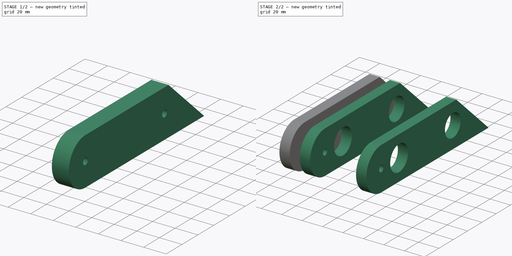
[diagram: build sequence overview — one tinted view per stage of 2, left to right]
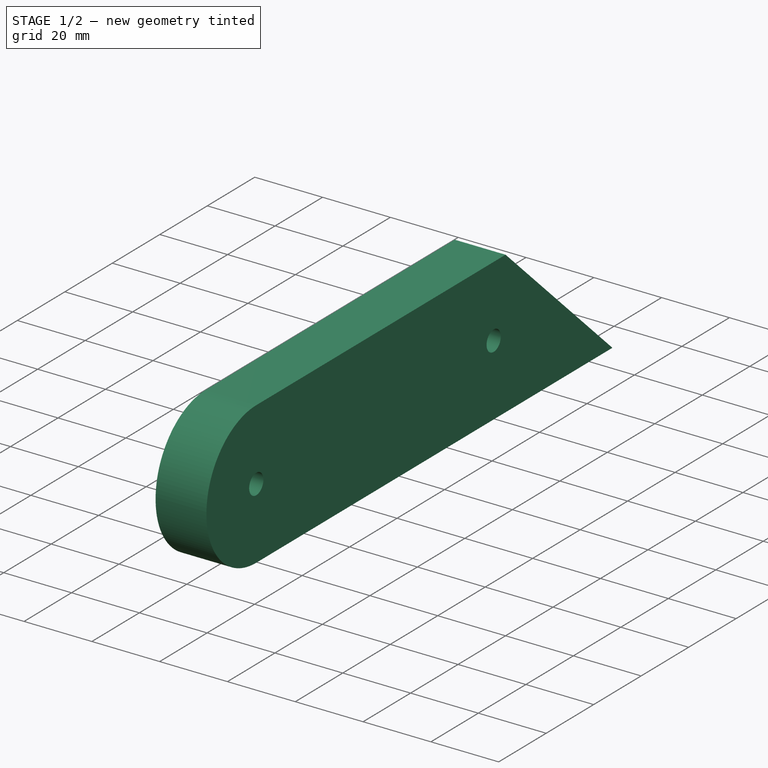
[diagram: stage 1 of 2 — iso view after this stage's code; geometry added in this stage tinted green]
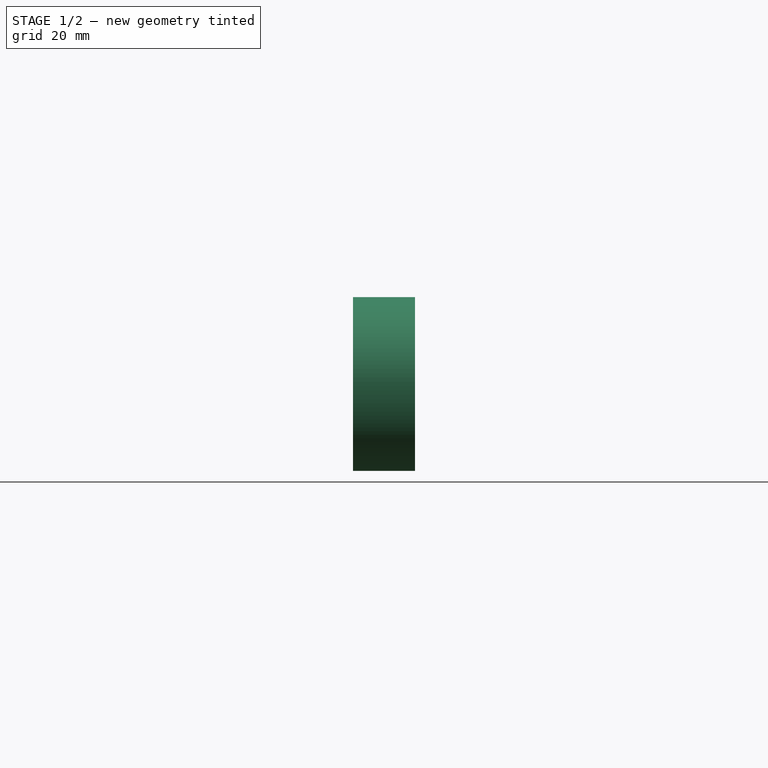
[diagram: stage 1 of 2 — front view after this stage's code; geometry added in this stage tinted green]
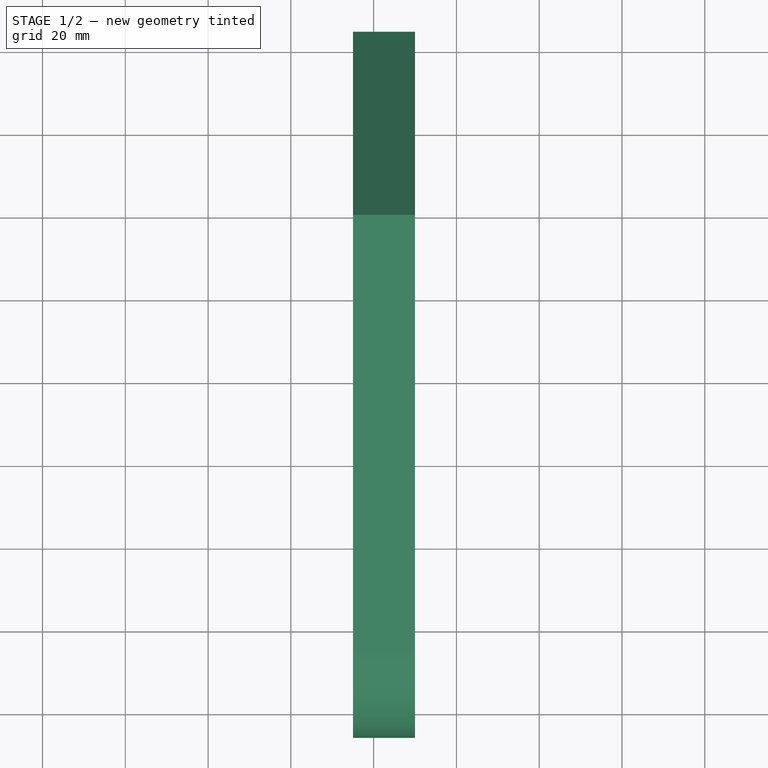
[diagram: stage 1 of 2 — top view after this stage's code; geometry added in this stage tinted green]
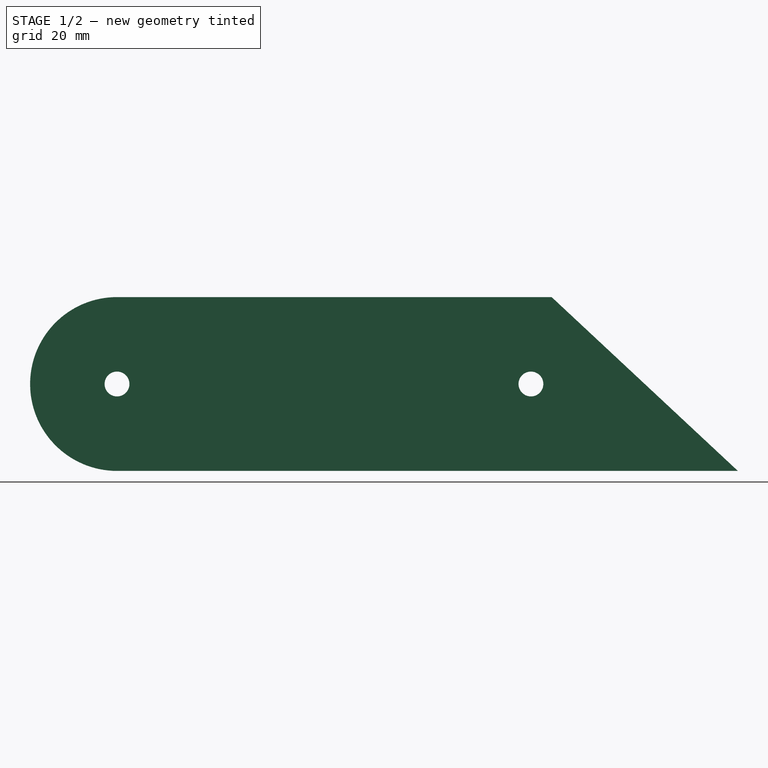
[diagram: stage 1 of 2 — right view after this stage's code; geometry added in this stage tinted green]
FCSTD DOCUMENT  (FreeCAD 0.18.4R)
Label: test1
License: All rights reserved
LicenseURL: http://en.wikipedia.org/wiki/All_rights_reserved
objects: PartDesign::Body×4, Sketcher::SketchObject×3, PartDesign::Pad×2, PartDesign::FeatureBase×2
note: 13 computed .brp shape members not serialized (recipe doc carries the construction recipe); baked Part::Feature solids carry a one-line shape summary decoded from their .brp

FEATURE [Sketcher::SketchObject] Sketch
  MapMode = 5
  Placement = pos=(0,0,0) rot=(0.57735,0.57735,0.57735;2.0944rad)
  Support = -> [YZ_Plane]
  sketch-geometry (7):
    g0: ArcOfCircle CenterX=-25 CenterY=21 CenterZ=0 NormalX=0 NormalY=0 NormalZ=1 AngleXU=0 Radius=21 StartAngle=1.5708 EndAngle=4.71239
    g1: Circle CenterX=0 CenterY=21 CenterZ=0 NormalX=0 NormalY=0 NormalZ=1 AngleXU=0 Radius=12.5
    g2: Circle CenterX=75 CenterY=21 CenterZ=0 NormalX=0 NormalY=0 NormalZ=1 AngleXU=0 Radius=11
    g3: LineSegment StartX=-25 StartY=42 StartZ=0 EndX=80 EndY=42 EndZ=0
    g4: LineSegment StartX=80 StartY=42 StartZ=0 EndX=125 EndY=0 EndZ=0
    g5: LineSegment StartX=125 StartY=0 StartZ=0 EndX=-25 EndY=0 EndZ=0
    g6: Circle CenterX=-25 CenterY=21 CenterZ=0 NormalX=0 NormalY=0 NormalZ=1 AngleXU=0 Radius=3
  constraints (20):
    c: PointOnObject(g0,g-1)
    c: Tangent(g0,g3) = 1.5708
    c: Coincident(g3,g4)
    c: Coincident(g4,g5)
    c: Coincident(g5,g0)
    c: Horizontal(g5)
    c: Horizontal(g3)
    c: Horizontal(g2,g1)
    c: DistanceY(g0,g0) = 42
    c: DistanceX(g0,g4) = 150
    c: Radius(g0) = 21
    c: Radius(g1) = 12.5
    c: Radius(g2) = 11
    c: DistanceX(g0,g1) = 25
    c: DistanceX(g0,g2) = 100
    c: Coincident(g6,g0)
    c: Radius(g6) = 3
    c: DistanceX(g3,g4) = 45
    c: PointOnObject(g1,g-2)
    c: DistanceY(g-1,g1) = 21
FEATURE [PartDesign::Pad] Pad
  Length = 10
  Length2 = 100
  Midplane = true
  Placement = pos=(0,0,0) rot=(0.57735,0.57735,0.57735;2.0944rad)
  Profile = -> Sketch
  Refine = true
  Type = 0
FEATURE [PartDesign::Body] Body002
  Group = -> [Clone001]
  Origin = -> Origin002
  Tip = -> Clone001
FEATURE [Sketcher::SketchObject] Sketch001
  MapMode = 5
  Placement = pos=(0,0,0) rot=(0.57735,0.57735,0.57735;2.0944rad)
  Support = -> [YZ_Plane]
  sketch-geometry (6):
    g0: ArcOfCircle CenterX=-25 CenterY=21 CenterZ=0 NormalX=0 NormalY=0 NormalZ=1 AngleXU=0 Radius=21 StartAngle=1.5708 EndAngle=4.71239
    g1: Circle CenterX=75 CenterY=21 CenterZ=0 NormalX=0 NormalY=0 NormalZ=1 AngleXU=0 Radius=3
    g2: LineSegment StartX=-25 StartY=42 StartZ=0 EndX=80 EndY=42 EndZ=0
    g3: LineSegment StartX=80 StartY=42 StartZ=0 EndX=125 EndY=0 EndZ=0
    g4: LineSegment StartX=125 StartY=0 StartZ=0 EndX=-25 EndY=0 EndZ=0
    g5: Circle CenterX=-25 CenterY=21 CenterZ=0 NormalX=0 NormalY=0 NormalZ=1 AngleXU=0 Radius=3
  constraints (15):
    c: PointOnObject(g0,g-1)
    c: Tangent(g0,g2) = 1.5708
    c: Coincident(g2,g3)
    c: Coincident(g3,g4)
    c: Coincident(g4,g0)
    c: Horizontal(g4)
    c: Horizontal(g2)
    c: DistanceY(g0,g0) = 42
    c: DistanceX(g0,g3) = 150
    c: Radius(g0) = 21
    c: Radius(g1) = 3
    c: DistanceX(g0,g1) = 100
    c: Coincident(g5,g0)
    c: Radius(g5) = 3
    c: DistanceX(g2,g3) = 45
FEATURE [Sketcher::SketchObject] CopySketch001
  Placement = pos=(0,0,0) rot=(0.57735,0.57735,0.57735;2.0944rad)
  sketch-geometry (6):
    g0: ArcOfCircle CenterX=-25 CenterY=21 CenterZ=0 NormalX=0 NormalY=0 NormalZ=1 AngleXU=0 Radius=21 StartAngle=1.5708 EndAngle=4.71239
    g1: Circle CenterX=75 CenterY=21 CenterZ=0 NormalX=0 NormalY=0 NormalZ=1 AngleXU=0 Radius=3
    g2: LineSegment StartX=-25 StartY=42 StartZ=0 EndX=80 EndY=42 EndZ=0
    g3: LineSegment StartX=80 StartY=42 StartZ=0 EndX=125 EndY=0 EndZ=0
    g4: LineSegment StartX=125 StartY=0 StartZ=0 EndX=-25 EndY=0 EndZ=0
    g5: Circle CenterX=-25 CenterY=21 CenterZ=0 NormalX=0 NormalY=0 NormalZ=1 AngleXU=0 Radius=3
  constraints (15):
    c: PointOnObject(g0,g-1)
    c: Tangent(g0,g2) = 1.5708
    c: Coincident(g2,g3)
    c: Coincident(g3,g4)
    c: Coincident(g4,g0)
    c: Horizontal(g4)
    c: Horizontal(g2)
    c: DistanceY(g0,g0) = 42
    c: DistanceX(g0,g3) = 150
    c: Radius(g0) = 21
    c: Radius(g1) = 3
    c: DistanceX(g0,g1) = 100
    c: Coincident(g5,g0)
    c: Radius(g5) = 3
    c: DistanceX(g2,g3) = 45
FEATURE [PartDesign::Pad] Pad001
  Length = 10
  Length2 = 100
  Placement = pos=(0,0,0) rot=(0.57735,0.57735,0.57735;2.0944rad)
  Profile = -> CopySketch001
  Refine = true
  Type = 0
FEATURE [PartDesign::Body] Body003  label="outerpanel"
  Group = -> [Pad001]
  Origin = -> Origin003
  Placement = pos=(115,0,0) rot=(0,0,1;0rad)
  Tip = -> Pad001
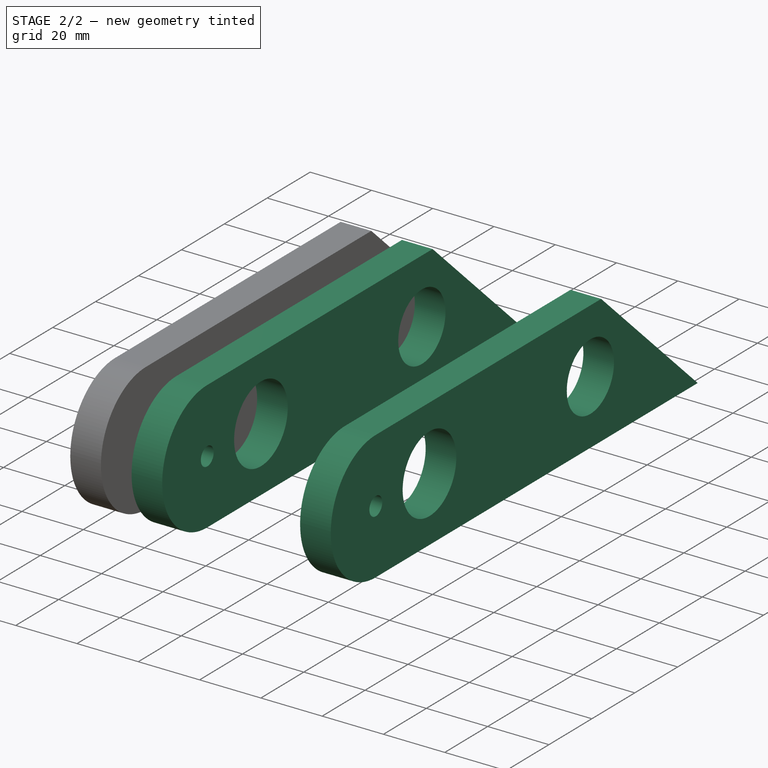
[diagram: stage 2 of 2 — iso view after this stage's code; geometry added in this stage tinted green]
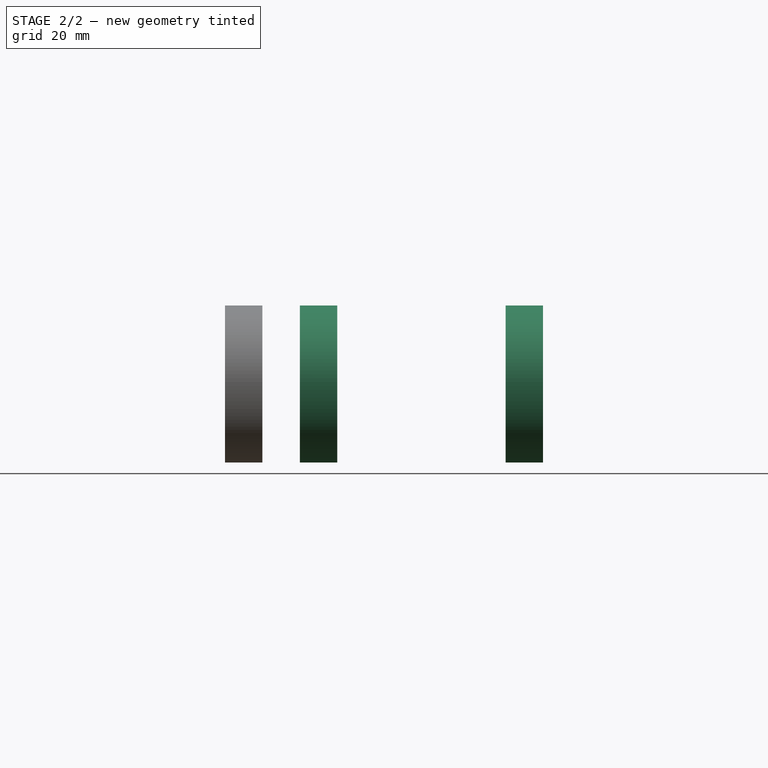
[diagram: stage 2 of 2 — front view after this stage's code; geometry added in this stage tinted green]
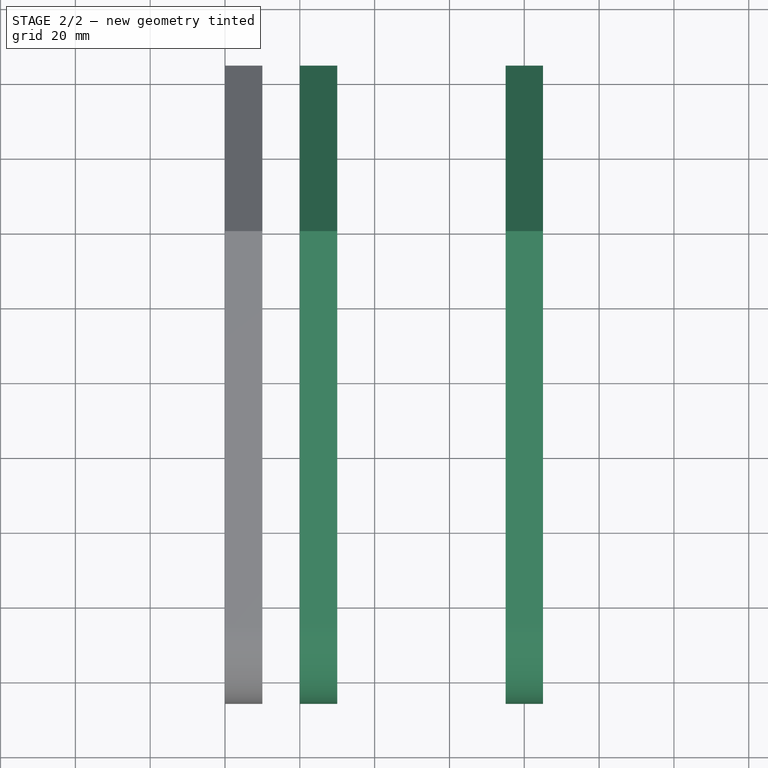
[diagram: stage 2 of 2 — top view after this stage's code; geometry added in this stage tinted green]
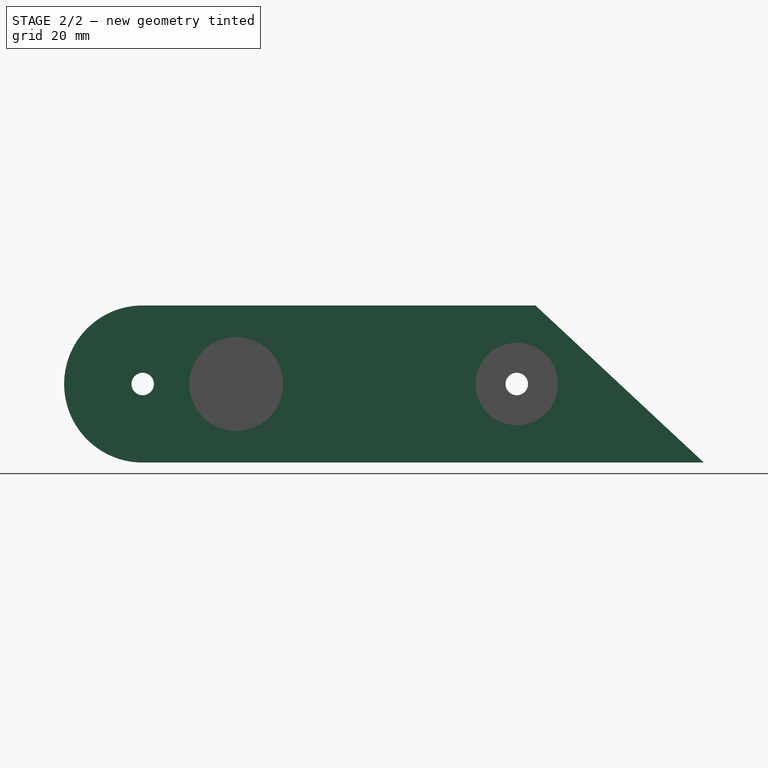
[diagram: stage 2 of 2 — right view after this stage's code; geometry added in this stage tinted green]
FEATURE [PartDesign::Body] Body
  Group = -> [Sketch,Pad]
  Origin = -> Origin
  Tip = -> Pad
FEATURE [PartDesign::FeatureBase] Clone
  BaseFeature = -> Body
  Placement = pos=(25,0,0) rot=(0,0,1;0rad)
FEATURE [PartDesign::Body] Body001
  Group = -> [Clone]
  Origin = -> Origin001
  Tip = -> Clone
FEATURE [PartDesign::FeatureBase] Clone001
  BaseFeature = -> Body
  Placement = pos=(80,0,0) rot=(0,0,1;0rad)
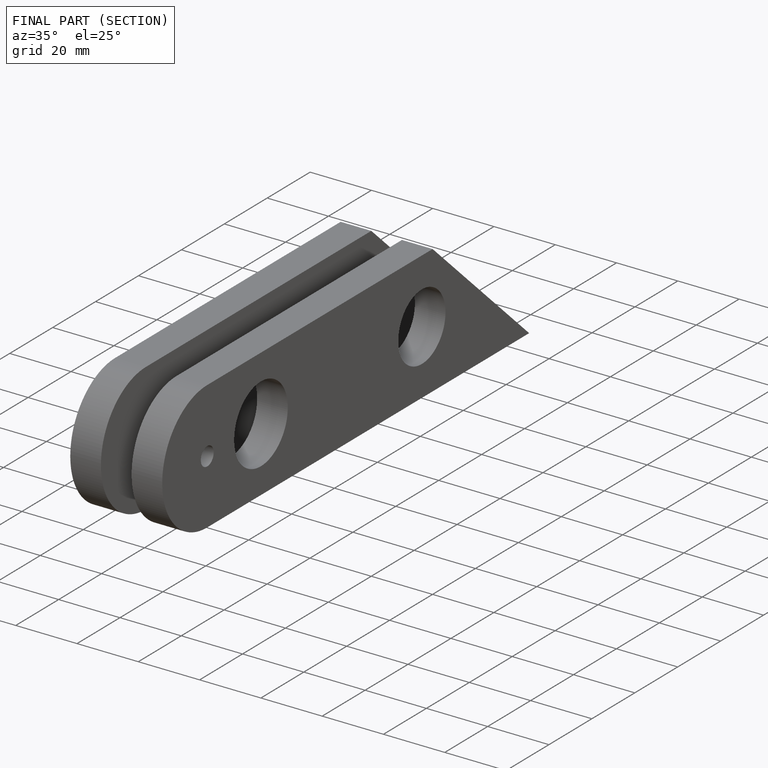
[diagram: finished part — half-section view (interior)]
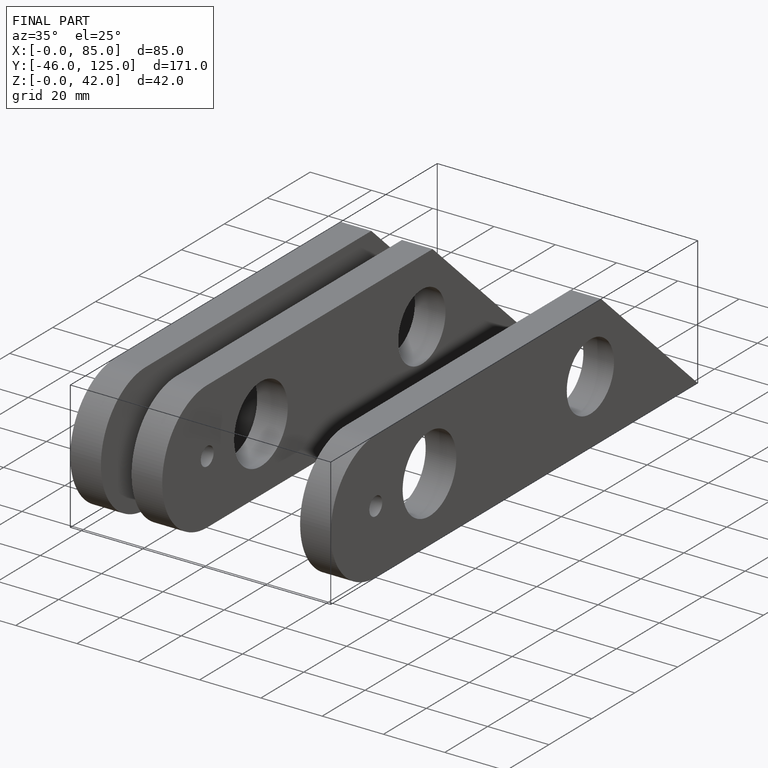
[diagram: finished part — iso view with bounding-box wireframe]
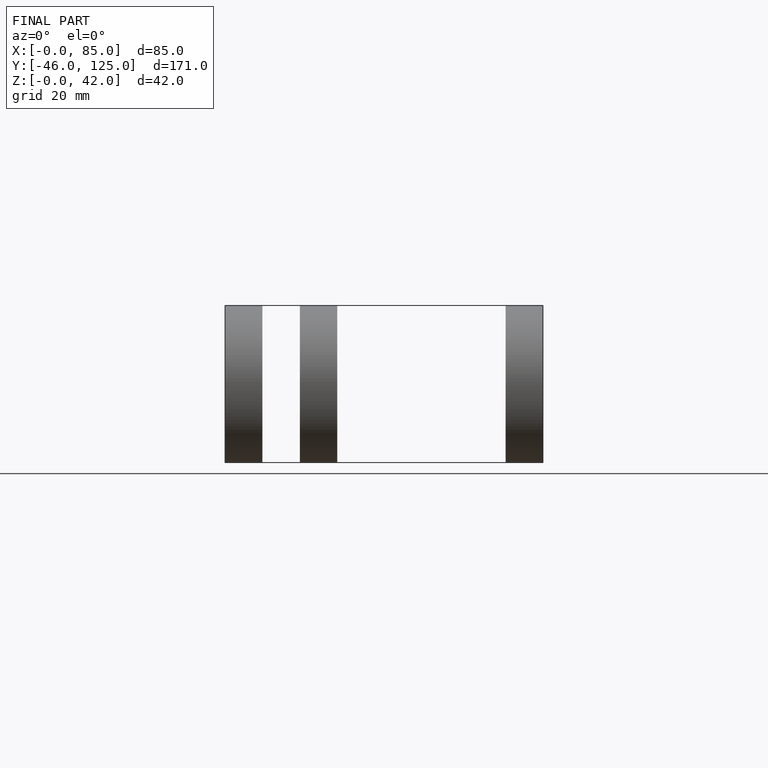
[diagram: finished part — front view with bounding-box wireframe]
